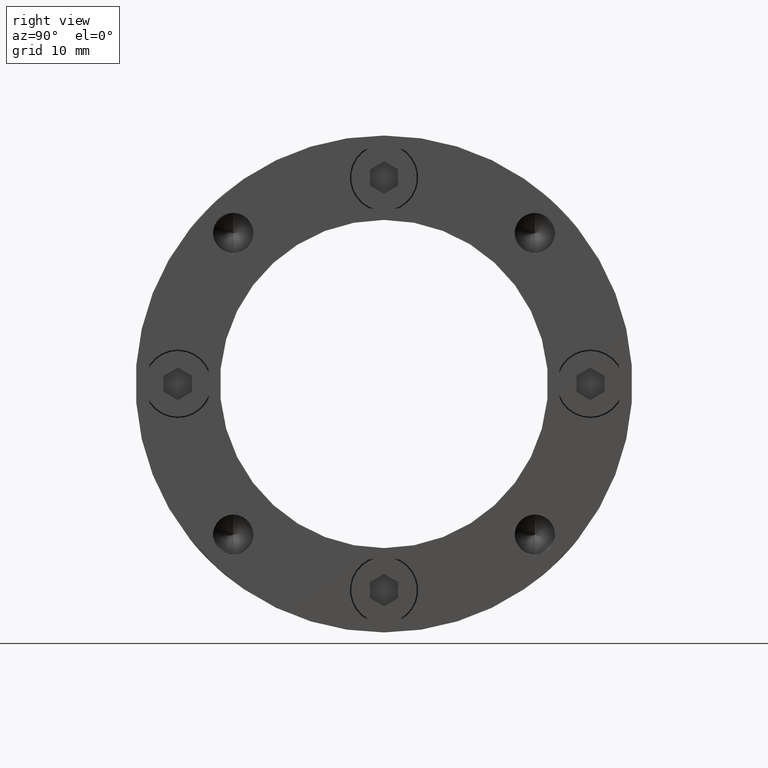
[diagram: clean part render]
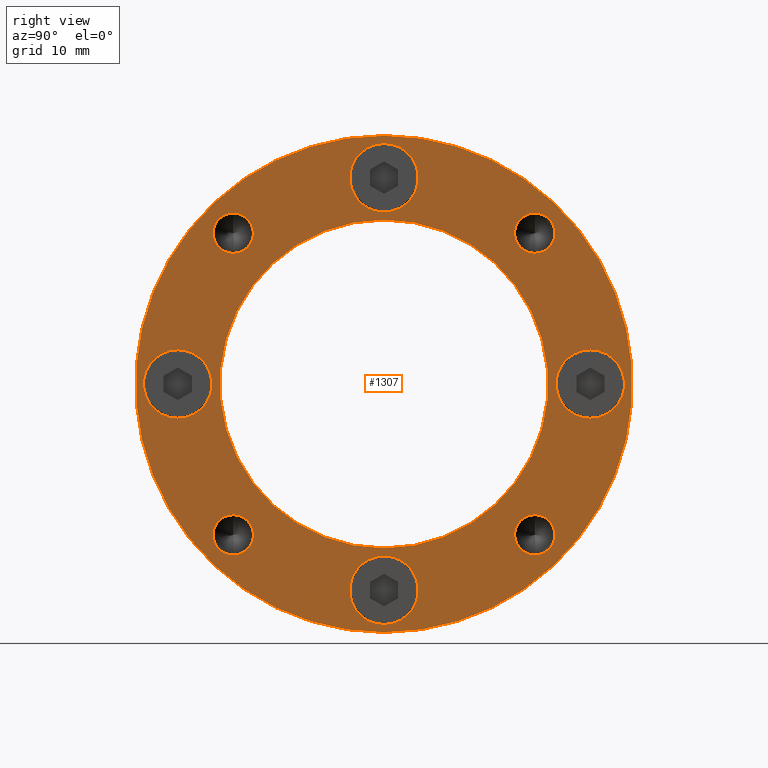
[diagram: same view with one face highlighted and labeled with its STEP entity id]
A machine part, right view. The second image highlights one B-rep face of the part: STEP entity #1307.
In plain terms, the highlighted planar face has unit normal (1, 0, 0).
Its self-contained STEP definition (entity closure, byte-faithful):
#11 = ORIENTED_EDGE ( 'NONE', *, *, #3458, .T. ) ;
#755 = DIRECTION ( 'NONE',  ( 1.000000000000000000, -0.0000000000000000000, 0.0000000000000000000 ) ) ;
#757 = PLANE ( 'NONE',  #3111 ) ;
#759 = CARTESIAN_POINT ( 'NONE',  ( 21.99999999999999300, 22.00000000000000000, 0.0000000000000000000 ) ) ;
#761 = DIRECTION ( 'NONE',  ( 0.0000000000000000000, 0.0000000000000000000, -1.000000000000000000 ) ) ;
#1307 = ADVANCED_FACE ( 'NONE', ( #1553, #1561, #1557, #1555, #1559, #1562, #1563, #1564, #1565, #1566 ), #757, .T. ) ;
#1386 = EDGE_LOOP ( 'NONE', ( #3557, #2989 ) ) ;
#1388 = EDGE_LOOP ( 'NONE', ( #2805, #3558 ) ) ;
#1400 = EDGE_LOOP ( 'NONE', ( #1467, #1471 ) ) ;
#1405 = EDGE_LOOP ( 'NONE', ( #1468, #1470 ) ) ;
#1408 = EDGE_LOOP ( 'NONE', ( #11, #3120 ) ) ;
#1409 = EDGE_LOOP ( 'NONE', ( #3125, #3126 ) ) ;
#1414 = EDGE_LOOP ( 'NONE', ( #3121, #3122 ) ) ;
#1432 = EDGE_LOOP ( 'NONE', ( #2775, #2790 ) ) ;
#1437 = EDGE_LOOP ( 'NONE', ( #3123, #3124 ) ) ;
#1451 = EDGE_LOOP ( 'NONE', ( #1469, #1466 ) ) ;
#1466 = ORIENTED_EDGE ( 'NONE', *, *, #3492, .T. ) ;
#1467 = ORIENTED_EDGE ( 'NONE', *, *, #3438, .T. ) ;
#1468 = ORIENTED_EDGE ( 'NONE', *, *, #3442, .T. ) ;
#1469 = ORIENTED_EDGE ( 'NONE', *, *, #3434, .T. ) ;
#1470 = ORIENTED_EDGE ( 'NONE', *, *, #3489, .T. ) ;
#1471 = ORIENTED_EDGE ( 'NONE', *, *, #3491, .T. ) ;
#1553 = FACE_BOUND ( 'NONE', #1451, .T. ) ;
#1555 = FACE_BOUND ( 'NONE', #1432, .T. ) ;
#1557 = FACE_BOUND ( 'NONE', #1405, .T. ) ;
#1559 = FACE_BOUND ( 'NONE', #1388, .T. ) ;
#1561 = FACE_BOUND ( 'NONE', #1400, .T. ) ;
#1562 = FACE_BOUND ( 'NONE', #1386, .T. ) ;
#1563 = FACE_BOUND ( 'NONE', #1408, .T. ) ;
#1564 = FACE_BOUND ( 'NONE', #1414, .T. ) ;
#1565 = FACE_BOUND ( 'NONE', #1437, .T. ) ;
#1566 = FACE_OUTER_BOUND ( 'NONE', #1409, .T. ) ;
#1686 = CIRCLE ( 'NONE', #1799, 26.50000000000000400 ) ;
#1692 = CIRCLE ( 'NONE', #1801, 17.50000000000000000 ) ;
#1697 = CIRCLE ( 'NONE', #1803, 3.650000000000000400 ) ;
#1703 = CIRCLE ( 'NONE', #1805, 3.649999999999999900 ) ;
#1709 = CIRCLE ( 'NONE', #1807, 3.650000000000000400 ) ;
#1715 = CIRCLE ( 'NONE', #1809, 3.649999999999999900 ) ;
#1721 = CIRCLE ( 'NONE', #1811, 2.149999999999999000 ) ;
#1727 = CIRCLE ( 'NONE', #1813, 2.149999999999999000 ) ;
#1733 = CIRCLE ( 'NONE', #1815, 2.149999999999999000 ) ;
#1739 = CIRCLE ( 'NONE', #1817, 2.149999999999999000 ) ;
#1799 = AXIS2_PLACEMENT_3D ( 'NONE', #2195, #2196, #2197 ) ;
#1801 = AXIS2_PLACEMENT_3D ( 'NONE', #2205, #2206, #2207 ) ;
#1803 = AXIS2_PLACEMENT_3D ( 'NONE', #2215, #2216, #2217 ) ;
#1805 = AXIS2_PLACEMENT_3D ( 'NONE', #2225, #2226, #2227 ) ;
#1807 = AXIS2_PLACEMENT_3D ( 'NONE', #2235, #2236, #2237 ) ;
#1809 = AXIS2_PLACEMENT_3D ( 'NONE', #2245, #2246, #2247 ) ;
#1811 = AXIS2_PLACEMENT_3D ( 'NONE', #2255, #2256, #2257 ) ;
#1813 = AXIS2_PLACEMENT_3D ( 'NONE', #2265, #2266, #2267 ) ;
#1815 = AXIS2_PLACEMENT_3D ( 'NONE', #2275, #2276, #2277 ) ;
#1817 = AXIS2_PLACEMENT_3D ( 'NONE', #2287, #2288, #2289 ) ;
#1822 = AXIS2_PLACEMENT_3D ( 'NONE', #2316, #2317, #2318 ) ;
#1823 = AXIS2_PLACEMENT_3D ( 'NONE', #2319, #2320, #2321 ) ;
#1824 = AXIS2_PLACEMENT_3D ( 'NONE', #2322, #2323, #2324 ) ;
#1825 = AXIS2_PLACEMENT_3D ( 'NONE', #2325, #2326, #2327 ) ;
#1827 = AXIS2_PLACEMENT_3D ( 'NONE', #2331, #2332, #2333 ) ;
#1829 = AXIS2_PLACEMENT_3D ( 'NONE', #2337, #2338, #2339 ) ;
#1831 = AXIS2_PLACEMENT_3D ( 'NONE', #2343, #2344, #2345 ) ;
#1833 = AXIS2_PLACEMENT_3D ( 'NONE', #2349, #2350, #2351 ) ;
#1834 = AXIS2_PLACEMENT_3D ( 'NONE', #2352, #2353, #2354 ) ;
#1835 = AXIS2_PLACEMENT_3D ( 'NONE', #2355, #2356, #2357 ) ;
#2002 = CARTESIAN_POINT ( 'NONE',  ( 21.99999999999999300, 16.08667927199395800, -13.93667927199396000 ) ) ;
#2004 = CARTESIAN_POINT ( 'NONE',  ( 21.99999999999999300, 22.00000000000001400, -3.650000000000003900 ) ) ;
#2005 = CARTESIAN_POINT ( 'NONE',  ( 21.99999999999999300, 0.0000000000000000000, -17.50000000000000000 ) ) ;
#2013 = CARTESIAN_POINT ( 'NONE',  ( 21.99999999999999300, 16.08667927199396200, 18.23667927199395300 ) ) ;
#2020 = CARTESIAN_POINT ( 'NONE',  ( 21.99999999999999300, 16.08667927199395800, -18.23667927199395700 ) ) ;
#2021 = CARTESIAN_POINT ( 'NONE',  ( 21.99999999999999300, 16.08667927199396200, 13.93667927199395600 ) ) ;
#2045 = CARTESIAN_POINT ( 'NONE',  ( 21.99999999999999300, -16.08667927199395800, 13.93667927199396000 ) ) ;
#2111 = CARTESIAN_POINT ( 'NONE',  ( 21.99999999999999300, -2.247226918311216200E-015, -18.35000000000001200 ) ) ;
#2116 = CARTESIAN_POINT ( 'NONE',  ( 21.99999999999999300, 3.245314017740486600E-015, 26.50000000000000400 ) ) ;
#2124 = CARTESIAN_POINT ( 'NONE',  ( 21.99999999999999300, 0.0000000000000000000, -26.50000000000000400 ) ) ;
#2125 = CARTESIAN_POINT ( 'NONE',  ( 21.99999999999999300, 2.143131898507868200E-015, 17.50000000000000000 ) ) ;
#2126 = CARTESIAN_POINT ( 'NONE',  ( 21.99999999999999300, 0.0000000000000000000, 18.35000000000001200 ) ) ;
#2127 = CARTESIAN_POINT ( 'NONE',  ( 21.99999999999999300, 4.469960816887838400E-016, 25.65000000000001300 ) ) ;
#2128 = CARTESIAN_POINT ( 'NONE',  ( 21.99999999999999300, -2.694223000000000100E-015, -25.65000000000001300 ) ) ;
#2129 = CARTESIAN_POINT ( 'NONE',  ( 21.99999999999999300, 22.00000000000001400, 3.649999999999995900 ) ) ;
#2135 = CARTESIAN_POINT ( 'NONE',  ( 21.99999999999999300, -16.08667927199395800, 18.23667927199395700 ) ) ;
#2140 = CARTESIAN_POINT ( 'NONE',  ( 21.99999999999999300, -16.08667927199395800, -13.93667927199396000 ) ) ;
#2141 = CARTESIAN_POINT ( 'NONE',  ( 21.99999999999999300, -16.08667927199395800, -18.23667927199395700 ) ) ;
#2143 = CARTESIAN_POINT ( 'NONE',  ( 21.99999999999999300, -22.00000000000001400, -3.649999999999998600 ) ) ;
#2147 = CARTESIAN_POINT ( 'NONE',  ( 21.99999999999999300, -22.00000000000001400, 3.650000000000001200 ) ) ;
#2195 = CARTESIAN_POINT ( 'NONE',  ( 21.99999999999999300, 0.0000000000000000000, 0.0000000000000000000 ) ) ;
#2196 = DIRECTION ( 'NONE',  ( -1.000000000000000000, -0.0000000000000000000, -0.0000000000000000000 ) ) ;
#2197 = DIRECTION ( 'NONE',  ( 0.0000000000000000000, 0.0000000000000000000, -1.000000000000000000 ) ) ;
#2205 = CARTESIAN_POINT ( 'NONE',  ( 21.99999999999999300, 0.0000000000000000000, 0.0000000000000000000 ) ) ;
#2206 = DIRECTION ( 'NONE',  ( -1.000000000000000000, -0.0000000000000000000, -0.0000000000000000000 ) ) ;
#2207 = DIRECTION ( 'NONE',  ( 0.0000000000000000000, 0.0000000000000000000, -1.000000000000000000 ) ) ;
#2215 = CARTESIAN_POINT ( 'NONE',  ( 21.99999999999999300, 0.0000000000000000000, 22.00000000000001400 ) ) ;
#2216 = DIRECTION ( 'NONE',  ( -1.000000000000000000, -0.0000000000000000000, -0.0000000000000000000 ) ) ;
#2217 = DIRECTION ( 'NONE',  ( 0.0000000000000000000, 0.0000000000000000000, -1.000000000000000000 ) ) ;
#2225 = CARTESIAN_POINT ( 'NONE',  ( 21.99999999999999300, -22.00000000000001400, 1.347110999999999900E-015 ) ) ;
#2226 = DIRECTION ( 'NONE',  ( -1.000000000000000000, -0.0000000000000000000, -0.0000000000000000000 ) ) ;
#2227 = DIRECTION ( 'NONE',  ( 0.0000000000000000000, 0.0000000000000000000, -1.000000000000000000 ) ) ;
#2235 = CARTESIAN_POINT ( 'NONE',  ( 21.99999999999999300, -2.694223000000000100E-015, -22.00000000000001400 ) ) ;
#2236 = DIRECTION ( 'NONE',  ( -1.000000000000000000, -0.0000000000000000000, -0.0000000000000000000 ) ) ;
#2237 = DIRECTION ( 'NONE',  ( 0.0000000000000000000, 0.0000000000000000000, -1.000000000000000000 ) ) ;
#2245 = CARTESIAN_POINT ( 'NONE',  ( 21.99999999999999300, 22.00000000000001400, -4.041333999999999800E-015 ) ) ;
#2246 = DIRECTION ( 'NONE',  ( -1.000000000000000000, -0.0000000000000000000, -0.0000000000000000000 ) ) ;
#2247 = DIRECTION ( 'NONE',  ( 0.0000000000000000000, 0.0000000000000000000, -1.000000000000000000 ) ) ;
#2255 = CARTESIAN_POINT ( 'NONE',  ( 21.99999999999999300, -16.08667927199395800, 16.08667927199395800 ) ) ;
#2256 = DIRECTION ( 'NONE',  ( -1.000000000000000000, -0.0000000000000000000, -0.0000000000000000000 ) ) ;
#2257 = DIRECTION ( 'NONE',  ( 0.0000000000000000000, 0.0000000000000000000, -1.000000000000000000 ) ) ;
#2265 = CARTESIAN_POINT ( 'NONE',  ( 21.99999999999999300, -16.08667927199395800, -16.08667927199395800 ) ) ;
#2266 = DIRECTION ( 'NONE',  ( -1.000000000000000000, -0.0000000000000000000, -0.0000000000000000000 ) ) ;
#2267 = DIRECTION ( 'NONE',  ( 0.0000000000000000000, 0.0000000000000000000, -1.000000000000000000 ) ) ;
#2275 = CARTESIAN_POINT ( 'NONE',  ( 21.99999999999999300, 16.08667927199395800, -16.08667927199395800 ) ) ;
#2276 = DIRECTION ( 'NONE',  ( -1.000000000000000000, -0.0000000000000000000, -0.0000000000000000000 ) ) ;
#2277 = DIRECTION ( 'NONE',  ( 0.0000000000000000000, 0.0000000000000000000, -1.000000000000000000 ) ) ;
#2287 = CARTESIAN_POINT ( 'NONE',  ( 21.99999999999999300, 16.08667927199396200, 16.08667927199395500 ) ) ;
#2288 = DIRECTION ( 'NONE',  ( -1.000000000000000000, -0.0000000000000000000, -0.0000000000000000000 ) ) ;
#2289 = DIRECTION ( 'NONE',  ( 0.0000000000000000000, 0.0000000000000000000, -1.000000000000000000 ) ) ;
#2316 = CARTESIAN_POINT ( 'NONE',  ( 21.99999999999999300, 16.08667927199396200, 16.08667927199395500 ) ) ;
#2317 = DIRECTION ( 'NONE',  ( -1.000000000000000000, -0.0000000000000000000, -0.0000000000000000000 ) ) ;
#2318 = DIRECTION ( 'NONE',  ( 0.0000000000000000000, 0.0000000000000000000, -1.000000000000000000 ) ) ;
#2319 = CARTESIAN_POINT ( 'NONE',  ( 21.99999999999999300, 16.08667927199395800, -16.08667927199395800 ) ) ;
#2320 = DIRECTION ( 'NONE',  ( -1.000000000000000000, -0.0000000000000000000, -0.0000000000000000000 ) ) ;
#2321 = DIRECTION ( 'NONE',  ( 0.0000000000000000000, 0.0000000000000000000, -1.000000000000000000 ) ) ;
#2322 = CARTESIAN_POINT ( 'NONE',  ( 21.99999999999999300, -16.08667927199395800, -16.08667927199395800 ) ) ;
#2323 = DIRECTION ( 'NONE',  ( -1.000000000000000000, -0.0000000000000000000, -0.0000000000000000000 ) ) ;
#2324 = DIRECTION ( 'NONE',  ( 0.0000000000000000000, 0.0000000000000000000, -1.000000000000000000 ) ) ;
#2325 = CARTESIAN_POINT ( 'NONE',  ( 21.99999999999999300, -16.08667927199395800, 16.08667927199395800 ) ) ;
#2326 = DIRECTION ( 'NONE',  ( -1.000000000000000000, -0.0000000000000000000, -0.0000000000000000000 ) ) ;
#2327 = DIRECTION ( 'NONE',  ( 0.0000000000000000000, 0.0000000000000000000, -1.000000000000000000 ) ) ;
#2331 = CARTESIAN_POINT ( 'NONE',  ( 21.99999999999999300, 22.00000000000001400, -4.041333999999999800E-015 ) ) ;
#2332 = DIRECTION ( 'NONE',  ( -1.000000000000000000, -0.0000000000000000000, -0.0000000000000000000 ) ) ;
#2333 = DIRECTION ( 'NONE',  ( 0.0000000000000000000, 0.0000000000000000000, -1.000000000000000000 ) ) ;
#2337 = CARTESIAN_POINT ( 'NONE',  ( 21.99999999999999300, -2.694223000000000100E-015, -22.00000000000001400 ) ) ;
#2338 = DIRECTION ( 'NONE',  ( -1.000000000000000000, -0.0000000000000000000, -0.0000000000000000000 ) ) ;
#2339 = DIRECTION ( 'NONE',  ( 0.0000000000000000000, 0.0000000000000000000, -1.000000000000000000 ) ) ;
#2343 = CARTESIAN_POINT ( 'NONE',  ( 21.99999999999999300, -22.00000000000001400, 1.347110999999999900E-015 ) ) ;
#2344 = DIRECTION ( 'NONE',  ( -1.000000000000000000, -0.0000000000000000000, -0.0000000000000000000 ) ) ;
#2345 = DIRECTION ( 'NONE',  ( 0.0000000000000000000, 0.0000000000000000000, -1.000000000000000000 ) ) ;
#2349 = CARTESIAN_POINT ( 'NONE',  ( 21.99999999999999300, 0.0000000000000000000, 22.00000000000001400 ) ) ;
#2350 = DIRECTION ( 'NONE',  ( -1.000000000000000000, -0.0000000000000000000, -0.0000000000000000000 ) ) ;
#2351 = DIRECTION ( 'NONE',  ( 0.0000000000000000000, 0.0000000000000000000, -1.000000000000000000 ) ) ;
#2352 = CARTESIAN_POINT ( 'NONE',  ( 21.99999999999999300, 0.0000000000000000000, 0.0000000000000000000 ) ) ;
#2353 = DIRECTION ( 'NONE',  ( -1.000000000000000000, -0.0000000000000000000, -0.0000000000000000000 ) ) ;
#2354 = DIRECTION ( 'NONE',  ( 0.0000000000000000000, 0.0000000000000000000, -1.000000000000000000 ) ) ;
#2355 = CARTESIAN_POINT ( 'NONE',  ( 21.99999999999999300, 0.0000000000000000000, 0.0000000000000000000 ) ) ;
#2356 = DIRECTION ( 'NONE',  ( -1.000000000000000000, -0.0000000000000000000, -0.0000000000000000000 ) ) ;
#2357 = DIRECTION ( 'NONE',  ( 0.0000000000000000000, 0.0000000000000000000, -1.000000000000000000 ) ) ;
#2578 = CIRCLE ( 'NONE', #1822, 2.149999999999999000 ) ;
#2579 = CIRCLE ( 'NONE', #1824, 2.149999999999999000 ) ;
#2580 = CIRCLE ( 'NONE', #1823, 2.149999999999999000 ) ;
#2581 = CIRCLE ( 'NONE', #1825, 2.149999999999999000 ) ;
#2583 = CIRCLE ( 'NONE', #1827, 3.649999999999999900 ) ;
#2585 = CIRCLE ( 'NONE', #1829, 3.650000000000000400 ) ;
#2587 = CIRCLE ( 'NONE', #1831, 3.649999999999999900 ) ;
#2589 = CIRCLE ( 'NONE', #1833, 3.650000000000000400 ) ;
#2590 = CIRCLE ( 'NONE', #1834, 17.50000000000000000 ) ;
#2591 = CIRCLE ( 'NONE', #1835, 26.50000000000000400 ) ;
#2775 = ORIENTED_EDGE ( 'NONE', *, *, #3446, .T. ) ;
#2790 = ORIENTED_EDGE ( 'NONE', *, *, #3487, .T. ) ;
#2805 = ORIENTED_EDGE ( 'NONE', *, *, #3450, .T. ) ;
#2821 = VERTEX_POINT ( 'NONE', #2004 ) ;
#2822 = VERTEX_POINT ( 'NONE', #2005 ) ;
#2829 = VERTEX_POINT ( 'NONE', #2002 ) ;
#2837 = VERTEX_POINT ( 'NONE', #2013 ) ;
#2846 = VERTEX_POINT ( 'NONE', #2020 ) ;
#2847 = VERTEX_POINT ( 'NONE', #2021 ) ;
#2872 = VERTEX_POINT ( 'NONE', #2045 ) ;
#2945 = VERTEX_POINT ( 'NONE', #2111 ) ;
#2950 = VERTEX_POINT ( 'NONE', #2116 ) ;
#2960 = VERTEX_POINT ( 'NONE', #2124 ) ;
#2961 = VERTEX_POINT ( 'NONE', #2125 ) ;
#2962 = VERTEX_POINT ( 'NONE', #2126 ) ;
#2963 = VERTEX_POINT ( 'NONE', #2127 ) ;
#2964 = VERTEX_POINT ( 'NONE', #2128 ) ;
#2965 = VERTEX_POINT ( 'NONE', #2129 ) ;
#2972 = VERTEX_POINT ( 'NONE', #2135 ) ;
#2978 = VERTEX_POINT ( 'NONE', #2140 ) ;
#2979 = VERTEX_POINT ( 'NONE', #2141 ) ;
#2981 = VERTEX_POINT ( 'NONE', #2143 ) ;
#2986 = VERTEX_POINT ( 'NONE', #2147 ) ;
#2989 = ORIENTED_EDGE ( 'NONE', *, *, #3483, .T. ) ;
#3111 = AXIS2_PLACEMENT_3D ( 'NONE', #759, #755, #761 ) ;
#3120 = ORIENTED_EDGE ( 'NONE', *, *, #3482, .T. ) ;
#3121 = ORIENTED_EDGE ( 'NONE', *, *, #3462, .T. ) ;
#3122 = ORIENTED_EDGE ( 'NONE', *, *, #3481, .T. ) ;
#3123 = ORIENTED_EDGE ( 'NONE', *, *, #3466, .T. ) ;
#3124 = ORIENTED_EDGE ( 'NONE', *, *, #3480, .T. ) ;
#3125 = ORIENTED_EDGE ( 'NONE', *, *, #3493, .F. ) ;
#3126 = ORIENTED_EDGE ( 'NONE', *, *, #3430, .F. ) ;
#3430 = EDGE_CURVE ( 'NONE', #2950, #2960, #1686, .T. ) ;
#3434 = EDGE_CURVE ( 'NONE', #2822, #2961, #1692, .T. ) ;
#3438 = EDGE_CURVE ( 'NONE', #2962, #2963, #1697, .T. ) ;
#3442 = EDGE_CURVE ( 'NONE', #2981, #2986, #1703, .T. ) ;
#3446 = EDGE_CURVE ( 'NONE', #2964, #2945, #1709, .T. ) ;
#3450 = EDGE_CURVE ( 'NONE', #2821, #2965, #1715, .T. ) ;
#3454 = EDGE_CURVE ( 'NONE', #2872, #2972, #1721, .T. ) ;
#3458 = EDGE_CURVE ( 'NONE', #2979, #2978, #1727, .T. ) ;
#3462 = EDGE_CURVE ( 'NONE', #2846, #2829, #1733, .T. ) ;
#3466 = EDGE_CURVE ( 'NONE', #2847, #2837, #1739, .T. ) ;
#3480 = EDGE_CURVE ( 'NONE', #2837, #2847, #2578, .T. ) ;
#3481 = EDGE_CURVE ( 'NONE', #2829, #2846, #2580, .T. ) ;
#3482 = EDGE_CURVE ( 'NONE', #2978, #2979, #2579, .T. ) ;
#3483 = EDGE_CURVE ( 'NONE', #2972, #2872, #2581, .T. ) ;
#3485 = EDGE_CURVE ( 'NONE', #2965, #2821, #2583, .T. ) ;
#3487 = EDGE_CURVE ( 'NONE', #2945, #2964, #2585, .T. ) ;
#3489 = EDGE_CURVE ( 'NONE', #2986, #2981, #2587, .T. ) ;
#3491 = EDGE_CURVE ( 'NONE', #2963, #2962, #2589, .T. ) ;
#3492 = EDGE_CURVE ( 'NONE', #2961, #2822, #2590, .T. ) ;
#3493 = EDGE_CURVE ( 'NONE', #2960, #2950, #2591, .T. ) ;
#3557 = ORIENTED_EDGE ( 'NONE', *, *, #3454, .T. ) ;
#3558 = ORIENTED_EDGE ( 'NONE', *, *, #3485, .T. ) ;